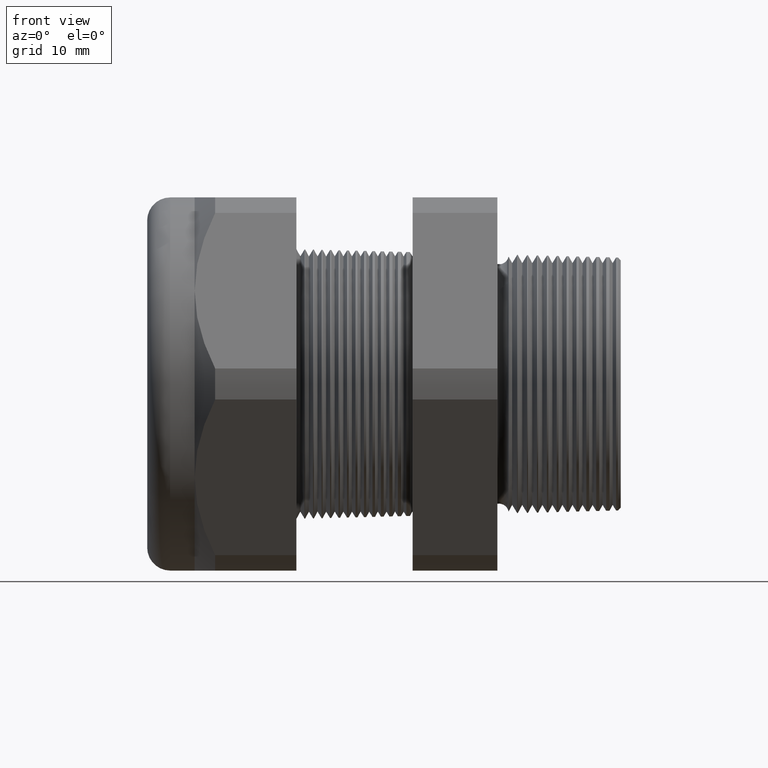
[diagram: clean part render]
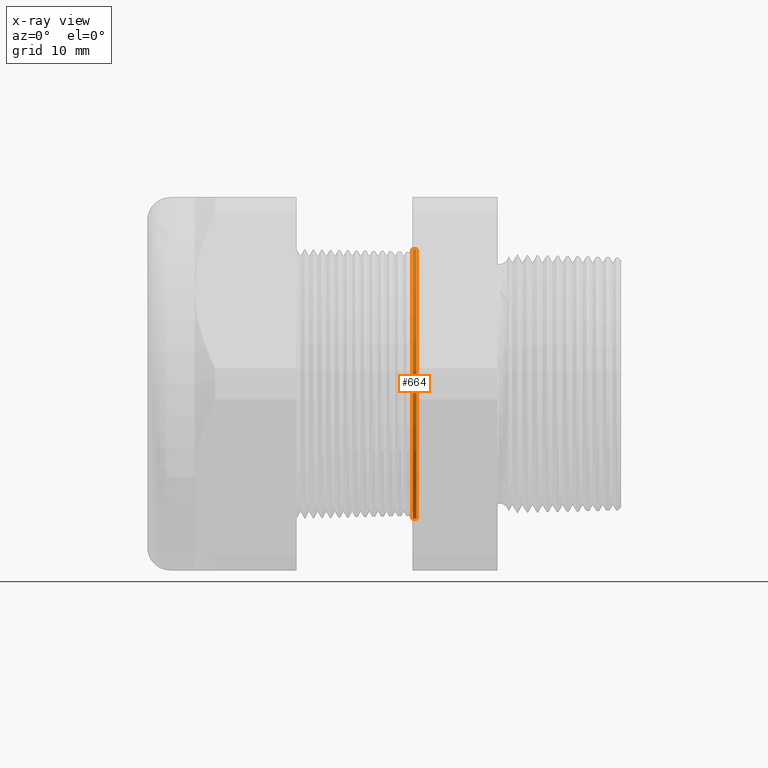
[diagram: x-ray — body ghosted, one internal face saturated and labeled with its STEP entity id]
A machine part, front view, then the same camera in x-ray: the body is ghosted and one INTERNAL B-rep face — a face not visible from any outside direction — is saturated and labeled: STEP entity #664.
In plain terms, the highlighted conical surface has half-angle 1.5 deg.
Its self-contained STEP definition (entity closure, byte-faithful):
#592 = ORIENTED_EDGE ( 'NONE', *, *, #593, .T. ) ;
#593 = EDGE_CURVE ( 'NONE', #652, #594, #2012, .T. ) ;
#594 = VERTEX_POINT ( 'NONE', #2071 ) ;
#595 = ORIENTED_EDGE ( 'NONE', *, *, #596, .F. ) ;
#596 = EDGE_CURVE ( 'NONE', #648, #594, #2070, .T. ) ;
#646 = ORIENTED_EDGE ( 'NONE', *, *, #647, .T. ) ;
#647 = EDGE_CURVE ( 'NONE', #648, #649, #2166, .T. ) ;
#648 = VERTEX_POINT ( 'NONE', #2161 ) ;
#649 = VERTEX_POINT ( 'NONE', #2160 ) ;
#650 = ORIENTED_EDGE ( 'NONE', *, *, #651, .T. ) ;
#651 = EDGE_CURVE ( 'NONE', #649, #652, #2159, .T. ) ;
#652 = VERTEX_POINT ( 'NONE', #2155 ) ;
#664 = ADVANCED_FACE ( 'NONE', ( #2194 ), #2192, .F. ) ;
#665 = EDGE_LOOP ( 'NONE', ( #646, #650, #592, #595 ) ) ;
#2010 = CARTESIAN_POINT ( 'NONE',  ( -0.6052755905511809600, 0.0000000000000000000, 0.0000000000000000000 ) ) ;
#2011 = AXIS2_PLACEMENT_3D ( 'NONE', #2010, #2073, #2072 ) ;
#2012 = CIRCLE ( 'NONE', #2011, 0.4696061802346682700 ) ;
#2067 = DIRECTION ( 'NONE',  ( -0.9996573249755573700, 0.0000000000000000000, 0.02617694830786618600 ) ) ;
#2068 = VECTOR ( 'NONE', #2067, 39.37007874015748100 ) ;
#2069 = CARTESIAN_POINT ( 'NONE',  ( -0.5914573393463203900, 0.0000000000000000000, 0.4692443365923945100 ) ) ;
#2070 = LINE ( 'NONE', #2069, #2068 ) ;
#2071 = CARTESIAN_POINT ( 'NONE',  ( -0.6052755905511809600, 0.0000000000000000000, 0.4696061802346682100 ) ) ;
#2072 = DIRECTION ( 'NONE',  ( 0.0000000000000000000, 0.0000000000000000000, 1.000000000000000000 ) ) ;
#2073 = DIRECTION ( 'NONE',  ( -1.000000000000000000, 0.0000000000000000000, 0.0000000000000000000 ) ) ;
#2155 = CARTESIAN_POINT ( 'NONE',  ( -0.6052755905511809600, 5.751017054842014700E-017, -0.4696061802346682100 ) ) ;
#2156 = DIRECTION ( 'NONE',  ( -0.9996573249755573700, 3.205751595667405400E-018, -0.02617694830786618600 ) ) ;
#2157 = VECTOR ( 'NONE', #2156, 39.37007874015748100 ) ;
#2158 = CARTESIAN_POINT ( 'NONE',  ( -0.5914573393463203900, 5.746585748258992000E-017, -0.4692443365923945100 ) ) ;
#2159 = LINE ( 'NONE', #2158, #2157 ) ;
#2160 = CARTESIAN_POINT ( 'NONE',  ( -0.5914573393463203900, 0.0000000000000000000, -0.4692443365923945100 ) ) ;
#2161 = CARTESIAN_POINT ( 'NONE',  ( -0.5914573393463203900, 5.746585748258992000E-017, 0.4692443365923945100 ) ) ;
#2162 = DIRECTION ( 'NONE',  ( 0.0000000000000000000, 0.0000000000000000000, -1.000000000000000000 ) ) ;
#2163 = DIRECTION ( 'NONE',  ( 1.000000000000000000, 0.0000000000000000000, 0.0000000000000000000 ) ) ;
#2164 = CARTESIAN_POINT ( 'NONE',  ( -0.5914573393463203900, 0.0000000000000000000, 0.0000000000000000000 ) ) ;
#2165 = AXIS2_PLACEMENT_3D ( 'NONE', #2164, #2163, #2162 ) ;
#2166 = CIRCLE ( 'NONE', #2165, 0.4692443365923945100 ) ;
#2188 = DIRECTION ( 'NONE',  ( 0.0000000000000000000, 0.0000000000000000000, 1.000000000000000000 ) ) ;
#2189 = DIRECTION ( 'NONE',  ( -1.000000000000000000, 0.0000000000000000000, 0.0000000000000000000 ) ) ;
#2190 = CARTESIAN_POINT ( 'NONE',  ( -0.5914573393463203900, 0.0000000000000000000, 0.0000000000000000000 ) ) ;
#2191 = AXIS2_PLACEMENT_3D ( 'NONE', #2190, #2189, #2188 ) ;
#2192 = CONICAL_SURFACE ( 'NONE', #2191, 0.4692443365923945100, 0.02617993877990797800 ) ;
#2194 = FACE_OUTER_BOUND ( 'NONE', #665, .T. ) ;